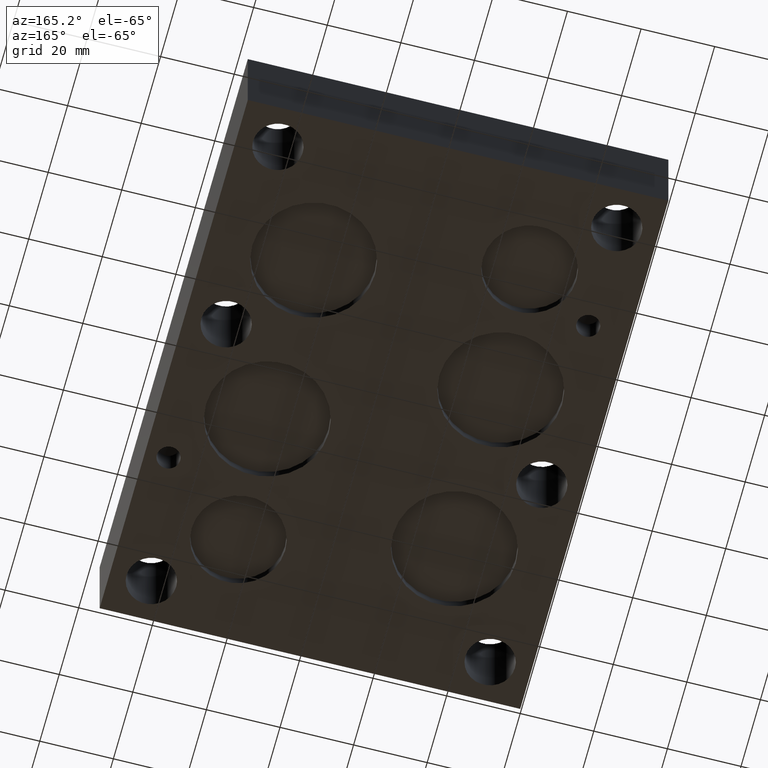
[diagram: clean part render]
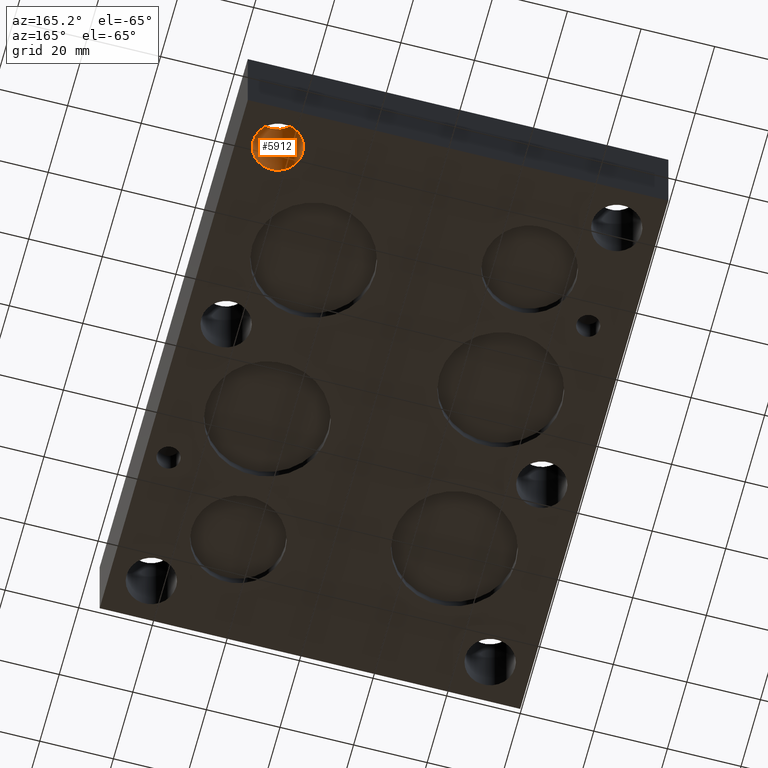
[diagram: same view with one face highlighted and labeled with its STEP entity id]
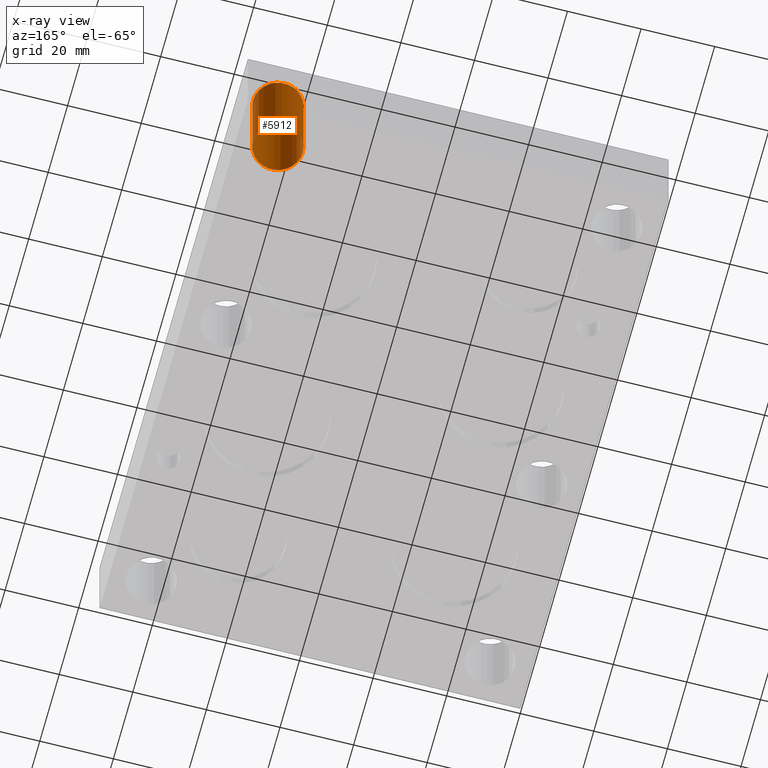
[diagram: x-ray of the same camera — body ghosted, the highlighted face saturated]
A machine part, auxiliary view. The second image highlights one B-rep face of the part: STEP entity #5912.
The next image is the same camera in x-ray: the body ghosted, the highlighted face saturated — about 1% of this face is hidden behind the body in this view.
In plain terms, the highlighted cylindrical surface (bore or boss wall) has radius 6.7437 mm, axis along (0, 0, -1).
Its self-contained STEP definition (entity closure, byte-faithful):
#38=CIRCLE('',#6171,6.7437);
#39=CIRCLE('',#6172,6.7437);
#55=CYLINDRICAL_SURFACE('',#6170,6.7437);
#601=FACE_OUTER_BOUND('',#927,.T.);
#927=EDGE_LOOP('',(#5221,#5222,#5223,#5224));
#1559=LINE('',#9932,#2173);
#2173=VECTOR('',#7264,6.7437);
#2866=VERTEX_POINT('',#9929);
#2867=VERTEX_POINT('',#9931);
#3659=EDGE_CURVE('',#2866,#2866,#38,.T.);
#3660=EDGE_CURVE('',#2866,#2867,#1559,.T.);
#3661=EDGE_CURVE('',#2867,#2867,#39,.T.);
#5221=ORIENTED_EDGE('',*,*,#3659,.F.);
#5222=ORIENTED_EDGE('',*,*,#3660,.T.);
#5223=ORIENTED_EDGE('',*,*,#3661,.F.);
#5224=ORIENTED_EDGE('',*,*,#3660,.F.);
#5912=ADVANCED_FACE('',(#601),#55,.F.);
#6170=AXIS2_PLACEMENT_3D('',#9928,#7260,#7261);
#6171=AXIS2_PLACEMENT_3D('',#9930,#7262,#7263);
#6172=AXIS2_PLACEMENT_3D('',#9933,#7265,#7266);
#7260=DIRECTION('center_axis',(0.,0.,-1.));
#7261=DIRECTION('ref_axis',(1.,0.,0.));
#7262=DIRECTION('center_axis',(0.,0.,1.));
#7263=DIRECTION('ref_axis',(1.,0.,0.));
#7264=DIRECTION('',(0.,0.,1.));
#7265=DIRECTION('center_axis',(0.,0.,-1.));
#7266=DIRECTION('ref_axis',(1.,0.,0.));
#9928=CARTESIAN_POINT('Origin',(103.1875,141.26972,192.185873570354));
#9929=CARTESIAN_POINT('',(96.4438,141.26972,0.));
#9930=CARTESIAN_POINT('Origin',(103.1875,141.26972,0.));
#9931=CARTESIAN_POINT('',(96.4438,141.26972,25.4));
#9932=CARTESIAN_POINT('',(96.4438,141.26972,192.185873570354));
#9933=CARTESIAN_POINT('Origin',(103.1875,141.26972,25.4));